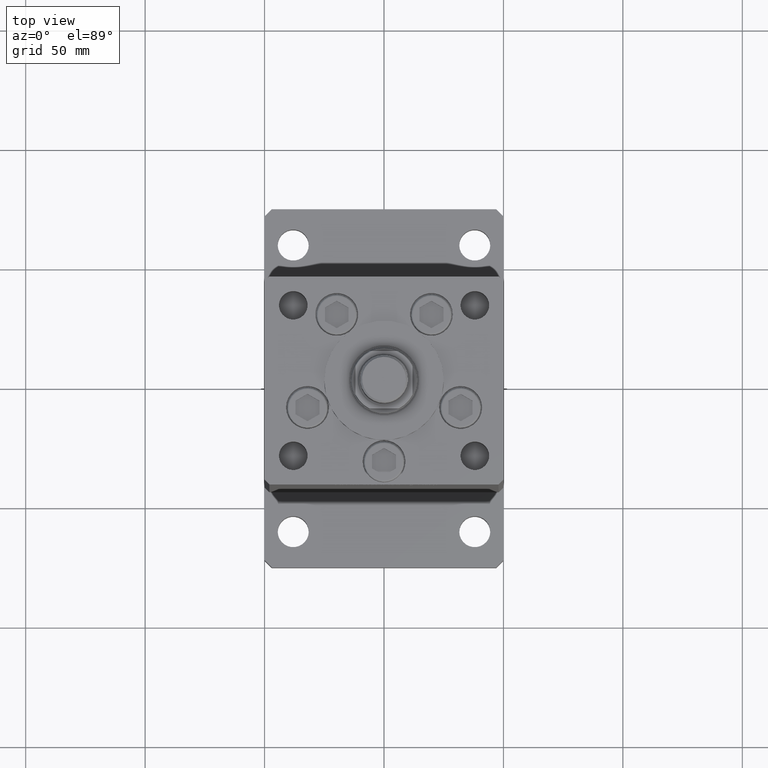
[diagram: clean part render]
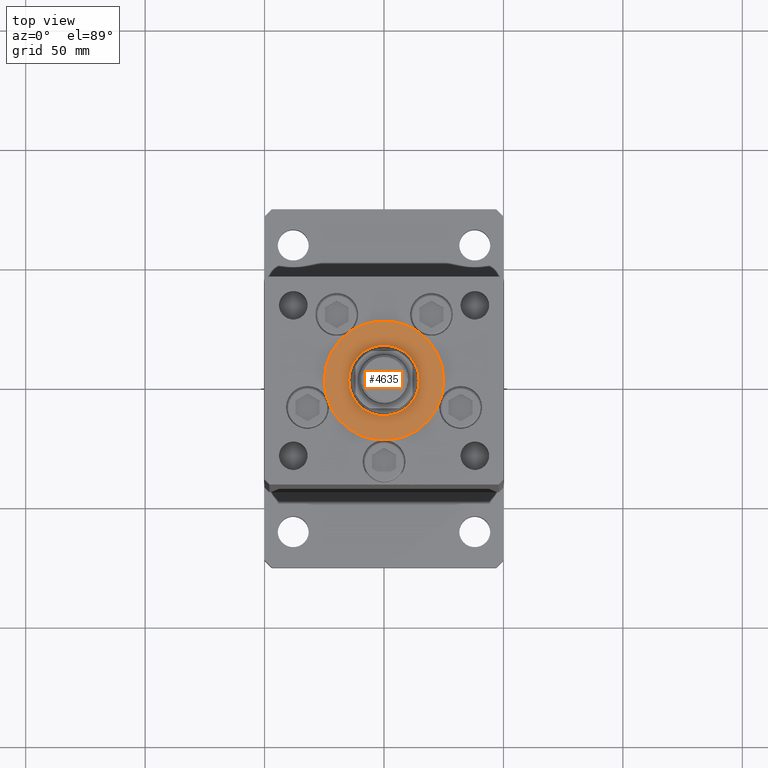
[diagram: same view with one face highlighted and labeled with its STEP entity id]
A machine part, top view. The second image highlights one B-rep face of the part: STEP entity #4635.
In plain terms, the highlighted planar face has unit normal (0, 0, 1).
Its self-contained STEP definition (entity closure, byte-faithful):
#140 = ORIENTED_EDGE ( 'NONE', *, *, #46718, .T. ) ;
#234 = DIRECTION ( 'NONE',  ( 0.000000000000000000, 0.000000000000000000, 1.000000000000000000 ) ) ;
#2225 = CARTESIAN_POINT ( 'NONE',  ( -25.00000000000000000, -6.938893903907228378E-15, 2.000000000000000000 ) ) ;
#4635 = ADVANCED_FACE ( 'NONE', ( #14555, #15363 ), #14827, .T. ) ;
#9864 = AXIS2_PLACEMENT_3D ( 'NONE', #22357, #47543, #34940 ) ;
#10197 = CARTESIAN_POINT ( 'NONE',  ( 14.75000000000000178, -6.938893903907228378E-15, 2.000000000000000000 ) ) ;
#10463 = DIRECTION ( 'NONE',  ( 0.000000000000000000, 0.000000000000000000, 1.000000000000000000 ) ) ;
#11006 = CARTESIAN_POINT ( 'NONE',  ( 0.000000000000000000, -6.938893903907228378E-15, 2.000000000000000000 ) ) ;
#14555 = FACE_BOUND ( 'NONE', #27863, .T. ) ;
#14827 = PLANE ( 'NONE',  #14877 ) ;
#14877 = AXIS2_PLACEMENT_3D ( 'NONE', #11006, #10463, #19478 ) ;
#15183 = EDGE_CURVE ( 'NONE', #16815, #45380, #49387, .T. ) ;
#15363 = FACE_OUTER_BOUND ( 'NONE', #17353, .T. ) ;
#15389 = CARTESIAN_POINT ( 'NONE',  ( -14.75000000000000178, -5.132539875164881787E-15, 2.000000000000000000 ) ) ;
#16815 = VERTEX_POINT ( 'NONE', #2225 ) ;
#17353 = EDGE_LOOP ( 'NONE', ( #45450, #140 ) ) ;
#17469 = CARTESIAN_POINT ( 'NONE',  ( 0.000000000000000000, -6.938893903907228378E-15, 2.000000000000000000 ) ) ;
#18698 = CARTESIAN_POINT ( 'NONE',  ( 0.000000000000000000, -6.938893903907228378E-15, 2.000000000000000000 ) ) ;
#19199 = CARTESIAN_POINT ( 'NONE',  ( 25.00000000000000000, -3.877276906038844941E-15, 2.000000000000000000 ) ) ;
#19478 = DIRECTION ( 'NONE',  ( 1.000000000000000000, 0.000000000000000000, -0.000000000000000000 ) ) ;
#22357 = CARTESIAN_POINT ( 'NONE',  ( 0.000000000000000000, -6.938893903907228378E-15, 2.000000000000000000 ) ) ;
#23133 = CARTESIAN_POINT ( 'NONE',  ( 0.000000000000000000, -6.938893903907228378E-15, 2.000000000000000000 ) ) ;
#24593 = EDGE_CURVE ( 'NONE', #49016, #51165, #50932, .T. ) ;
#25686 = DIRECTION ( 'NONE',  ( 1.000000000000000000, 0.000000000000000000, 0.000000000000000000 ) ) ;
#26748 = EDGE_CURVE ( 'NONE', #51165, #49016, #53501, .T. ) ;
#27661 = ORIENTED_EDGE ( 'NONE', *, *, #26748, .F. ) ;
#27783 = DIRECTION ( 'NONE',  ( 1.000000000000000000, 0.000000000000000000, 0.000000000000000000 ) ) ;
#27863 = EDGE_LOOP ( 'NONE', ( #33725, #27661 ) ) ;
#32167 = AXIS2_PLACEMENT_3D ( 'NONE', #17469, #234, #25686 ) ;
#33019 = CIRCLE ( 'NONE', #32167, 25.00000000000000000 ) ;
#33725 = ORIENTED_EDGE ( 'NONE', *, *, #24593, .F. ) ;
#34272 = AXIS2_PLACEMENT_3D ( 'NONE', #23133, #35722, #27783 ) ;
#34940 = DIRECTION ( 'NONE',  ( 1.000000000000000000, 0.000000000000000000, 0.000000000000000000 ) ) ;
#35722 = DIRECTION ( 'NONE',  ( 0.000000000000000000, 0.000000000000000000, 1.000000000000000000 ) ) ;
#39501 = DIRECTION ( 'NONE',  ( 0.000000000000000000, 0.000000000000000000, 1.000000000000000000 ) ) ;
#39776 = DIRECTION ( 'NONE',  ( 1.000000000000000000, 0.000000000000000000, 0.000000000000000000 ) ) ;
#45380 = VERTEX_POINT ( 'NONE', #19199 ) ;
#45450 = ORIENTED_EDGE ( 'NONE', *, *, #15183, .T. ) ;
#46718 = EDGE_CURVE ( 'NONE', #45380, #16815, #33019, .T. ) ;
#47543 = DIRECTION ( 'NONE',  ( 0.000000000000000000, 0.000000000000000000, 1.000000000000000000 ) ) ;
#47631 = AXIS2_PLACEMENT_3D ( 'NONE', #18698, #39501, #39776 ) ;
#49016 = VERTEX_POINT ( 'NONE', #10197 ) ;
#49387 = CIRCLE ( 'NONE', #47631, 25.00000000000000000 ) ;
#50932 = CIRCLE ( 'NONE', #9864, 14.75000000000000178 ) ;
#51165 = VERTEX_POINT ( 'NONE', #15389 ) ;
#53501 = CIRCLE ( 'NONE', #34272, 14.75000000000000178 ) ;